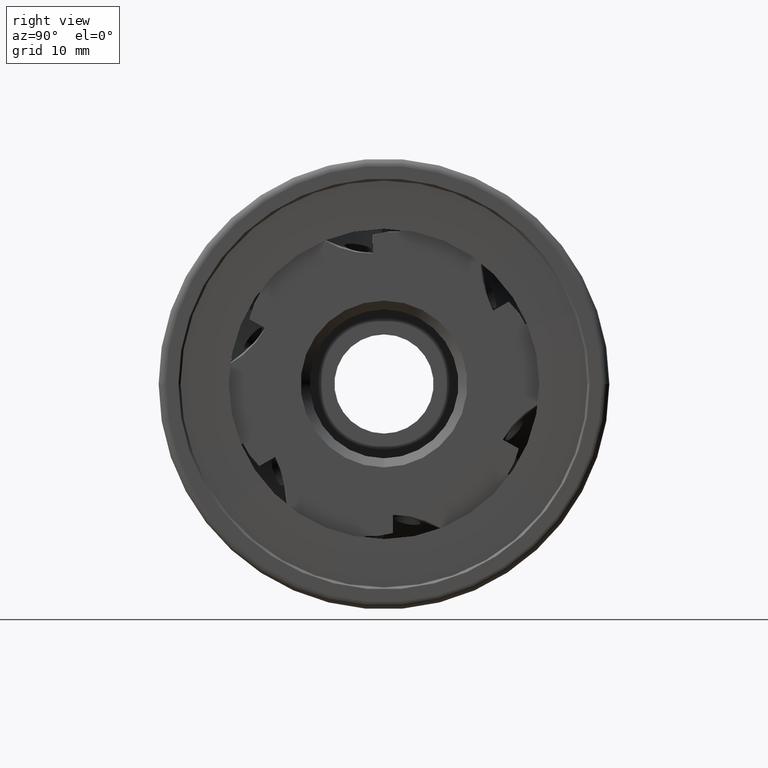
[diagram: clean part render]
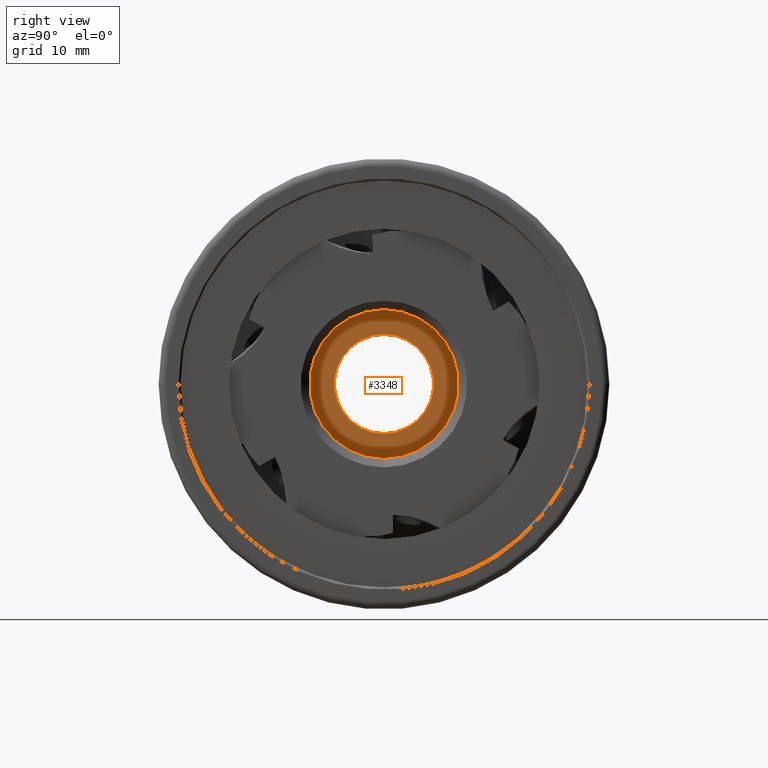
[diagram: same view with one face highlighted and labeled with its STEP entity id]
A machine part, right view. The second image highlights one B-rep face of the part: STEP entity #3348.
In plain terms, the highlighted planar face has unit normal (-1, 0, 0).
Its self-contained STEP definition (entity closure, byte-faithful):
#67 = EDGE_LOOP ( 'NONE', ( #831, #832 ) ) ;
#574 = EDGE_CURVE ( 'NONE', #1733, #1802, #5108, .T. ) ;
#575 = EDGE_CURVE ( 'NONE', #1792, #1714, #5110, .T. ) ;
#829 = ORIENTED_EDGE ( 'NONE', *, *, #574, .F. ) ;
#830 = ORIENTED_EDGE ( 'NONE', *, *, #3975, .F. ) ;
#831 = ORIENTED_EDGE ( 'NONE', *, *, #575, .T. ) ;
#832 = ORIENTED_EDGE ( 'NONE', *, *, #3970, .T. ) ;
#1393 = AXIS2_PLACEMENT_3D ( 'NONE', #5874, #5875, #5876 ) ;
#1394 = AXIS2_PLACEMENT_3D ( 'NONE', #5877, #5878, #5879 ) ;
#1482 = AXIS2_PLACEMENT_3D ( 'NONE', #7050, #7047, #7054 ) ;
#1499 = AXIS2_PLACEMENT_3D ( 'NONE', #7503, #7504, #7505 ) ;
#1501 = AXIS2_PLACEMENT_3D ( 'NONE', #7516, #7517, #7518 ) ;
#1714 = VERTEX_POINT ( 'NONE', #6652 ) ;
#1733 = VERTEX_POINT ( 'NONE', #6671 ) ;
#1792 = VERTEX_POINT ( 'NONE', #6730 ) ;
#1802 = VERTEX_POINT ( 'NONE', #6740 ) ;
#2064 = EDGE_LOOP ( 'NONE', ( #829, #830 ) ) ;
#3348 = ADVANCED_FACE ( 'NONE', ( #5314, #5316 ), #7052, .F. ) ;
#3970 = EDGE_CURVE ( 'NONE', #1714, #1792, #5384, .T. ) ;
#3975 = EDGE_CURVE ( 'NONE', #1802, #1733, #5391, .T. ) ;
#5108 = CIRCLE ( 'NONE', #1393, 5.499999999999998200 ) ;
#5110 = CIRCLE ( 'NONE', #1394, 8.249999999999998200 ) ;
#5314 = FACE_BOUND ( 'NONE', #2064, .T. ) ;
#5316 = FACE_OUTER_BOUND ( 'NONE', #67, .T. ) ;
#5384 = CIRCLE ( 'NONE', #1499, 8.249999999999998200 ) ;
#5391 = CIRCLE ( 'NONE', #1501, 5.499999999999998200 ) ;
#5874 = CARTESIAN_POINT ( 'NONE',  ( -11.99999999999999800, 0.0000000000000000000, 0.0000000000000000000 ) ) ;
#5875 = DIRECTION ( 'NONE',  ( 1.000000000000000000, -0.0000000000000000000, -0.0000000000000000000 ) ) ;
#5876 = DIRECTION ( 'NONE',  ( 0.0000000000000000000, 0.0000000000000000000, -1.000000000000000000 ) ) ;
#5877 = CARTESIAN_POINT ( 'NONE',  ( -11.99999999999999800, 0.0000000000000000000, 0.0000000000000000000 ) ) ;
#5878 = DIRECTION ( 'NONE',  ( 1.000000000000000000, -0.0000000000000000000, -0.0000000000000000000 ) ) ;
#5879 = DIRECTION ( 'NONE',  ( 0.0000000000000000000, 0.0000000000000000000, -1.000000000000000000 ) ) ;
#6652 = CARTESIAN_POINT ( 'NONE',  ( -11.99999999999999800, 1.010333609296566400E-015, 8.249999999999998200 ) ) ;
#6671 = CARTESIAN_POINT ( 'NONE',  ( -11.99999999999999800, 0.0000000000000000000, -5.499999999999998200 ) ) ;
#6730 = CARTESIAN_POINT ( 'NONE',  ( -11.99999999999999800, 0.0000000000000000000, -8.249999999999998200 ) ) ;
#6740 = CARTESIAN_POINT ( 'NONE',  ( -11.99999999999999800, 6.735557395310440100E-016, 5.499999999999998200 ) ) ;
#7047 = DIRECTION ( 'NONE',  ( -1.000000000000000000, 0.0000000000000000000, 0.0000000000000000000 ) ) ;
#7050 = CARTESIAN_POINT ( 'NONE',  ( -11.99999999999999800, 8.249999999999998200, 0.0000000000000000000 ) ) ;
#7052 = PLANE ( 'NONE',  #1482 ) ;
#7054 = DIRECTION ( 'NONE',  ( 0.0000000000000000000, 0.0000000000000000000, 1.000000000000000000 ) ) ;
#7503 = CARTESIAN_POINT ( 'NONE',  ( -11.99999999999999800, 0.0000000000000000000, 0.0000000000000000000 ) ) ;
#7504 = DIRECTION ( 'NONE',  ( 1.000000000000000000, -0.0000000000000000000, -0.0000000000000000000 ) ) ;
#7505 = DIRECTION ( 'NONE',  ( 0.0000000000000000000, 0.0000000000000000000, -1.000000000000000000 ) ) ;
#7516 = CARTESIAN_POINT ( 'NONE',  ( -11.99999999999999800, 0.0000000000000000000, 0.0000000000000000000 ) ) ;
#7517 = DIRECTION ( 'NONE',  ( 1.000000000000000000, -0.0000000000000000000, -0.0000000000000000000 ) ) ;
#7518 = DIRECTION ( 'NONE',  ( 0.0000000000000000000, 0.0000000000000000000, -1.000000000000000000 ) ) ;